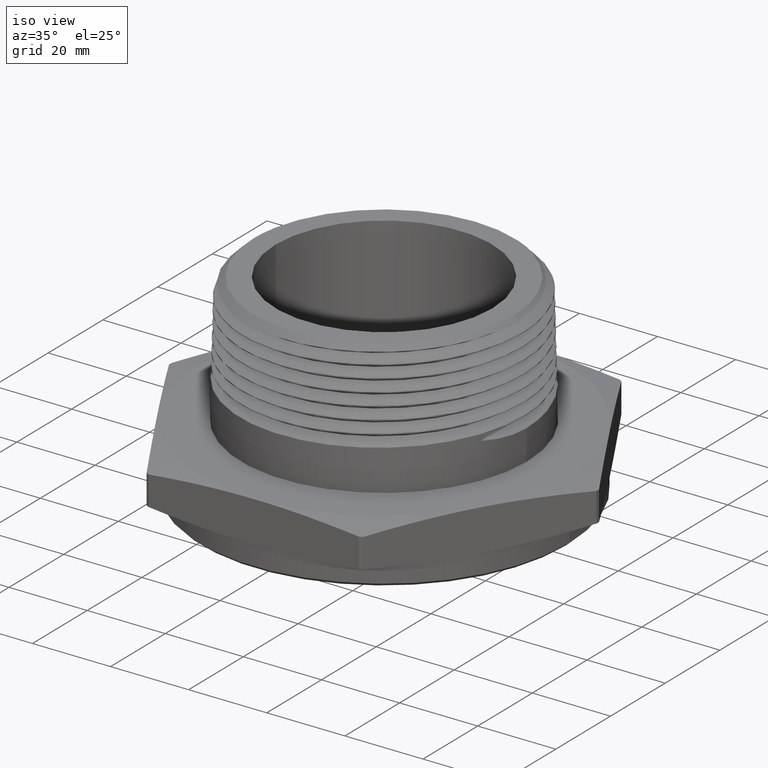
[diagram: clean part render]
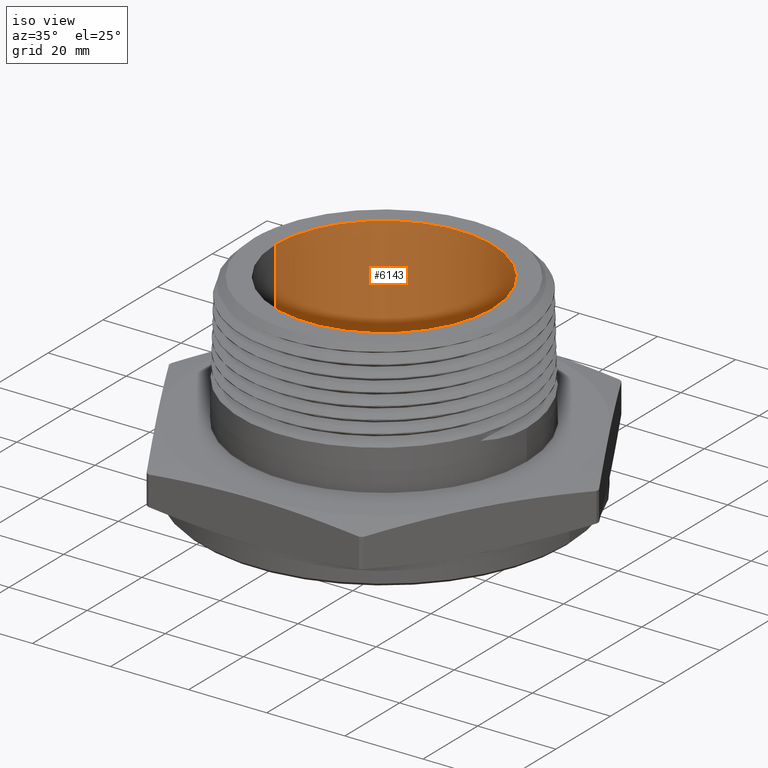
[diagram: same view with one face highlighted and labeled with its STEP entity id]
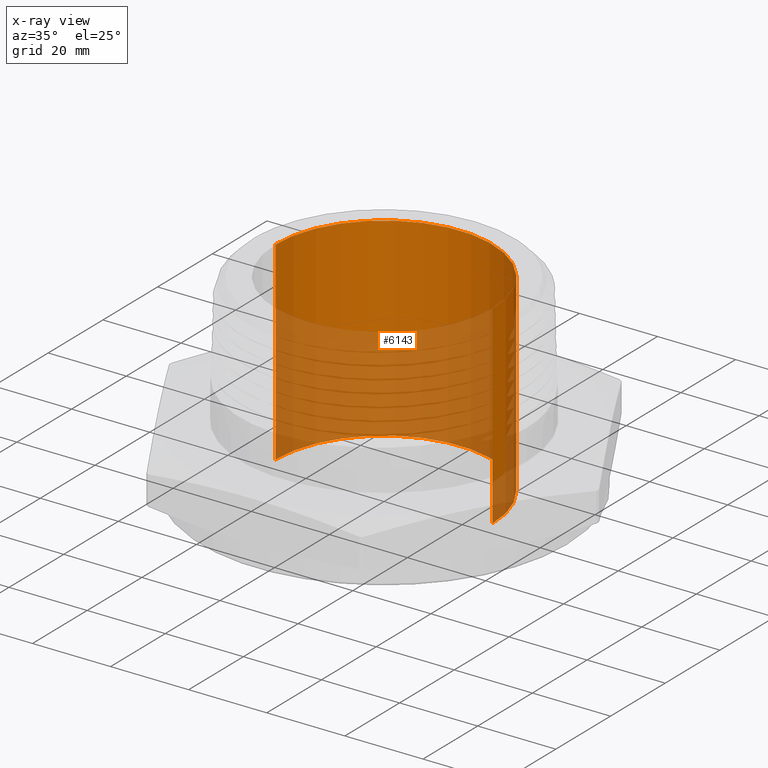
[diagram: x-ray of the same camera — body ghosted, the highlighted face saturated]
A machine part, iso view. The second image highlights one B-rep face of the part: STEP entity #6143.
The next image is the same camera in x-ray: the body ghosted, the highlighted face saturated — about 52% of this face is hidden behind the body in this view.
In plain terms, the highlighted cylindrical surface (partial cylindrical patch) has radius 27.7368 mm, axis along (0, 0, -1).
Its self-contained STEP definition (entity closure, byte-faithful):
#3 = VERTEX_POINT ( 'NONE', #1916 ) ;
#61 = LINE ( 'NONE', #6269, #73 ) ;
#73 = VECTOR ( 'NONE', #6273, 39.37007874015748100 ) ;
#241 = VERTEX_POINT ( 'NONE', #1925 ) ;
#246 = VERTEX_POINT ( 'NONE', #1928 ) ;
#249 = VERTEX_POINT ( 'NONE', #1931 ) ;
#1185 = EDGE_LOOP ( 'NONE', ( #7822, #7823, #7824, #7825 ) ) ;
#1916 = CARTESIAN_POINT ( 'NONE',  ( -1.092000000000000300, 0.0000000000000000000, 1.729999999999999800 ) ) ;
#1925 = CARTESIAN_POINT ( 'NONE',  ( 1.092000000000000300, 1.337314304668909900E-016, -0.2300000000000000100 ) ) ;
#1928 = CARTESIAN_POINT ( 'NONE',  ( 1.092000000000000300, 1.337314304668909900E-016, 1.729999999999999800 ) ) ;
#1931 = CARTESIAN_POINT ( 'NONE',  ( -1.092000000000000300, 0.0000000000000000000, -0.2300000000000000100 ) ) ;
#1963 = LINE ( 'NONE', #6319, #1966 ) ;
#1966 = VECTOR ( 'NONE', #6302, 39.37007874015748100 ) ;
#2030 = CIRCLE ( 'NONE', #5649, 1.092000000000000300 ) ;
#2032 = CIRCLE ( 'NONE', #5650, 1.092000000000000300 ) ;
#5649 = AXIS2_PLACEMENT_3D ( 'NONE', #7323, #7324, #7325 ) ;
#5650 = AXIS2_PLACEMENT_3D ( 'NONE', #7328, #7329, #7330 ) ;
#6143 = ADVANCED_FACE ( 'NONE', ( #6699 ), #6702, .F. ) ;
#6269 = CARTESIAN_POINT ( 'NONE',  ( 1.092000000000000300, 1.337314304668909900E-016, 4.911980515339462400 ) ) ;
#6273 = DIRECTION ( 'NONE',  ( 0.0000000000000000000, 0.0000000000000000000, -1.000000000000000000 ) ) ;
#6302 = DIRECTION ( 'NONE',  ( 0.0000000000000000000, 0.0000000000000000000, -1.000000000000000000 ) ) ;
#6319 = CARTESIAN_POINT ( 'NONE',  ( -1.092000000000000300, 0.0000000000000000000, 4.911980515339462400 ) ) ;
#6517 = EDGE_CURVE ( 'NONE', #246, #241, #61, .T. ) ;
#6534 = EDGE_CURVE ( 'NONE', #3, #249, #1963, .T. ) ;
#6612 = EDGE_CURVE ( 'NONE', #249, #241, #2030, .T. ) ;
#6613 = EDGE_CURVE ( 'NONE', #3, #246, #2032, .T. ) ;
#6653 = AXIS2_PLACEMENT_3D ( 'NONE', #7565, #7561, #7562 ) ;
#6699 = FACE_OUTER_BOUND ( 'NONE', #1185, .T. ) ;
#6702 = CYLINDRICAL_SURFACE ( 'NONE', #6653, 1.092000000000000300 ) ;
#7323 = CARTESIAN_POINT ( 'NONE',  ( 2.449293598294837300E-018, 0.0000000000000000000, -0.2300000000000000100 ) ) ;
#7324 = DIRECTION ( 'NONE',  ( 0.0000000000000000000, 0.0000000000000000000, -1.000000000000000000 ) ) ;
#7325 = DIRECTION ( 'NONE',  ( -1.000000000000000000, 0.0000000000000000000, 0.0000000000000000000 ) ) ;
#7328 = CARTESIAN_POINT ( 'NONE',  ( 2.449293598294837300E-018, 0.0000000000000000000, 1.729999999999999800 ) ) ;
#7329 = DIRECTION ( 'NONE',  ( -0.0000000000000000000, -0.0000000000000000000, -1.000000000000000000 ) ) ;
#7330 = DIRECTION ( 'NONE',  ( 1.000000000000000000, 0.0000000000000000000, 0.0000000000000000000 ) ) ;
#7561 = DIRECTION ( 'NONE',  ( 0.0000000000000000000, 0.0000000000000000000, -1.000000000000000000 ) ) ;
#7562 = DIRECTION ( 'NONE',  ( -1.000000000000000000, 0.0000000000000000000, 0.0000000000000000000 ) ) ;
#7565 = CARTESIAN_POINT ( 'NONE',  ( 2.449293598294837300E-018, 0.0000000000000000000, 4.911980515339462400 ) ) ;
#7822 = ORIENTED_EDGE ( 'NONE', *, *, #6517, .F. ) ;
#7823 = ORIENTED_EDGE ( 'NONE', *, *, #6613, .F. ) ;
#7824 = ORIENTED_EDGE ( 'NONE', *, *, #6534, .T. ) ;
#7825 = ORIENTED_EDGE ( 'NONE', *, *, #6612, .T. ) ;